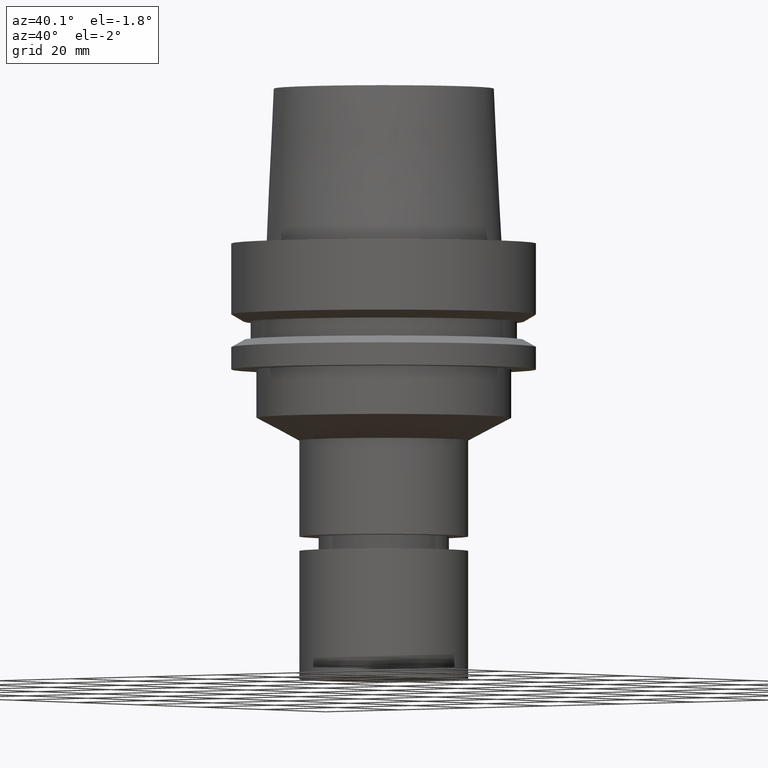
[diagram: clean part render]
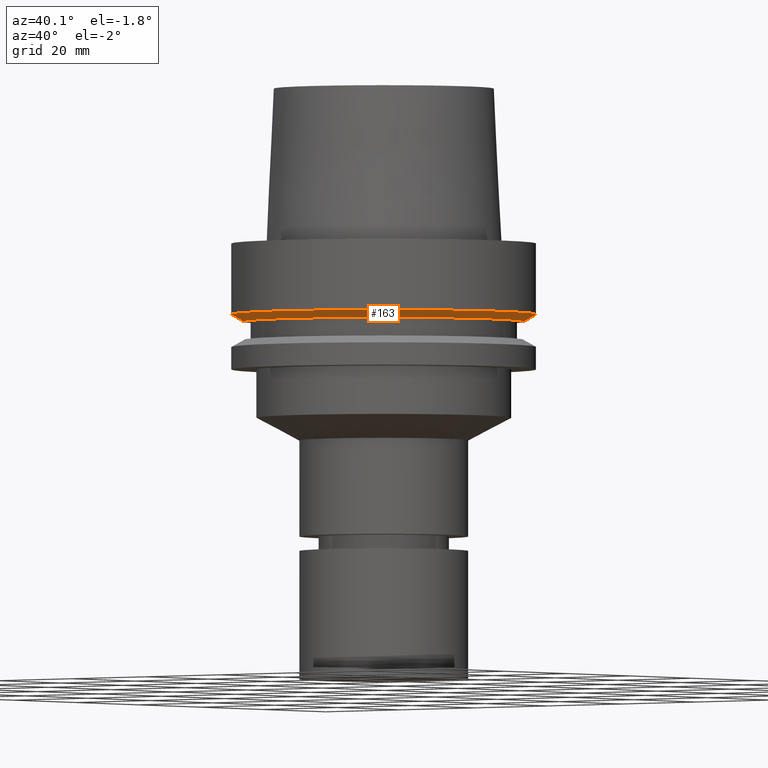
[diagram: same view with one face highlighted and labeled with its STEP entity id]
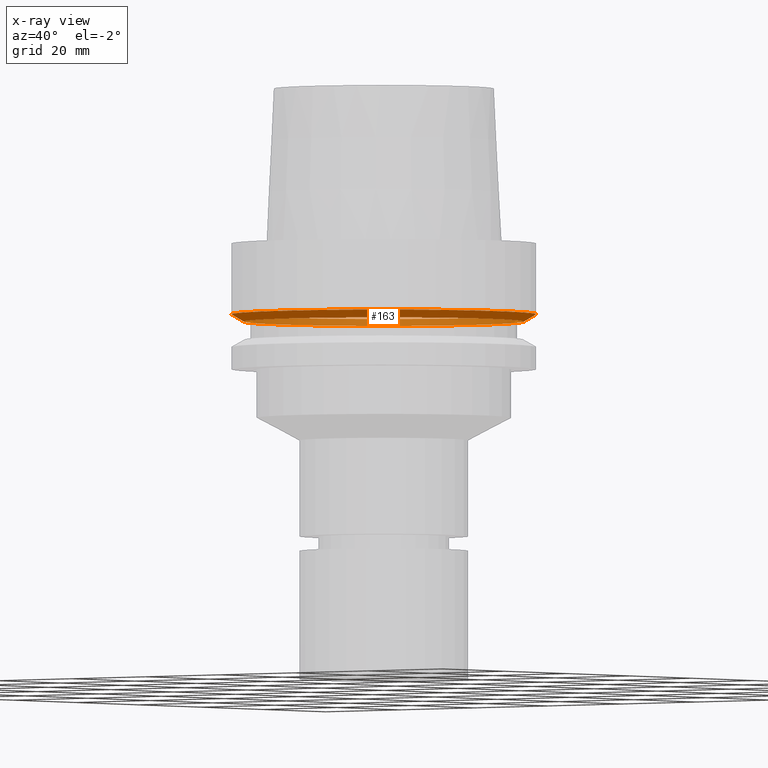
[diagram: x-ray of the same camera — body ghosted, the highlighted face saturated]
A machine part, auxiliary view. The second image highlights one B-rep face of the part: STEP entity #163.
The next image is the same camera in x-ray: the body ghosted, the highlighted face saturated — about 42% of this face is hidden behind the body in this view.
In plain terms, the highlighted conical surface has half-angle 60 deg.
Its self-contained STEP definition (entity closure, byte-faithful):
#107=EDGE_CURVE('Unnamed[1]',#260,#260,#261,.T.);
#135=EDGE_CURVE('Unnamed[1]',#301,#301,#302,.T.);
#163=ADVANCED_FACE('Unnamed[1]',(#343,#344),#345,.T.);
#260=VERTEX_POINT('',#462);
#261=CIRCLE('',#463,28.8975952641919);
#301=VERTEX_POINT('',#513);
#302=CIRCLE('',#514,31.5);
#343=FACE_BOUND('',#567,.T.);
#344=FACE_BOUND('',#568,.T.);
#345=CONICAL_SURFACE('',#569,30.1987976320959,1.04719755119657);
#462=CARTESIAN_POINT('',(9.87371481812551E-016,28.8975952641919,-16.125));
#463=AXIS2_PLACEMENT_3D('',#683,#684,#685);
#513=CARTESIAN_POINT('',(8.95369947681261E-016,31.5,-14.6225009252407));
#514=AXIS2_PLACEMENT_3D('',#727,#728,#729);
#567=EDGE_LOOP('',(#772));
#568=EDGE_LOOP('',(#773));
#569=AXIS2_PLACEMENT_3D('',#774,#775,#776);
#683=CARTESIAN_POINT('',(9.87371481812552E-016,1.9747429636251E-015,-16.125));
#684=DIRECTION('',(-6.12323399573677E-017,-1.22464679914735E-016,1.0));
#685=DIRECTION('',(-1.23259516440783E-032,1.0,1.22464679914735E-016));
#727=CARTESIAN_POINT('',(8.95369947681262E-016,1.79073989536252E-015,-14.6225009252407));
#728=DIRECTION('',(-6.12323399573677E-017,-1.22464679914735E-016,1.0));
#729=DIRECTION('',(-1.23259516440783E-032,1.0,1.22464679914735E-016));
#772=ORIENTED_EDGE('',*,*,#135,.F.);
#773=ORIENTED_EDGE('',*,*,#107,.T.);
#774=CARTESIAN_POINT('',(9.41370714746907E-016,1.88274142949381E-015,-15.3737504626203));
#775=DIRECTION('',(-6.12323399573677E-017,-1.22464679914735E-016,1.0));
#776=DIRECTION('',(-1.23259516440783E-032,1.0,1.22464679914735E-016));